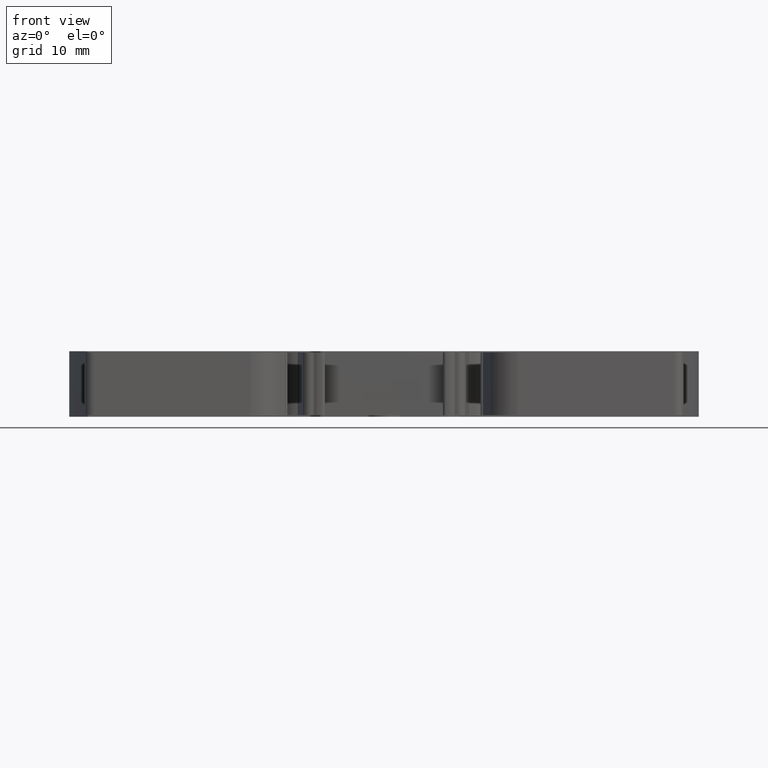
[diagram: clean part render]
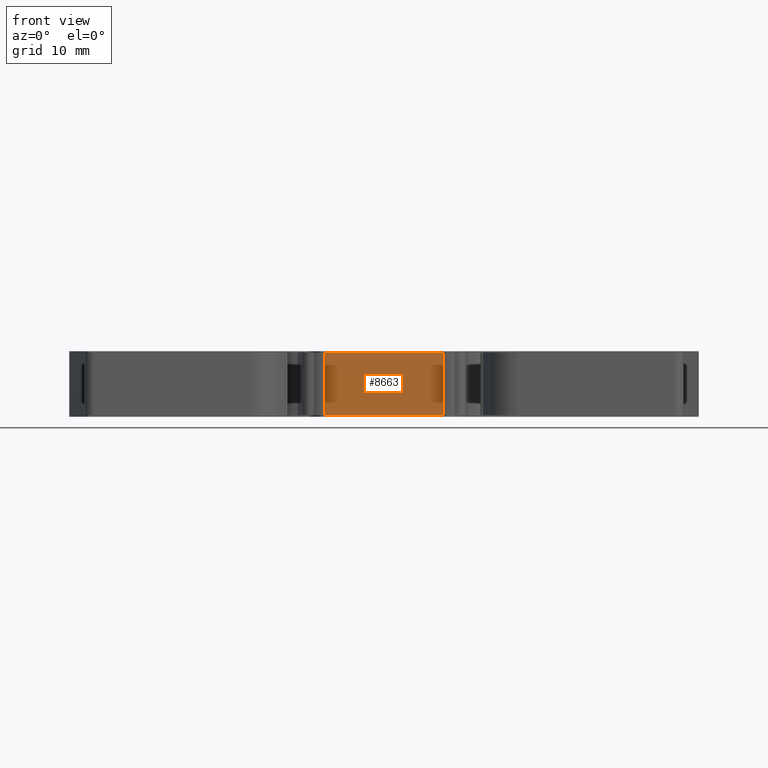
[diagram: same view with one face highlighted and labeled with its STEP entity id]
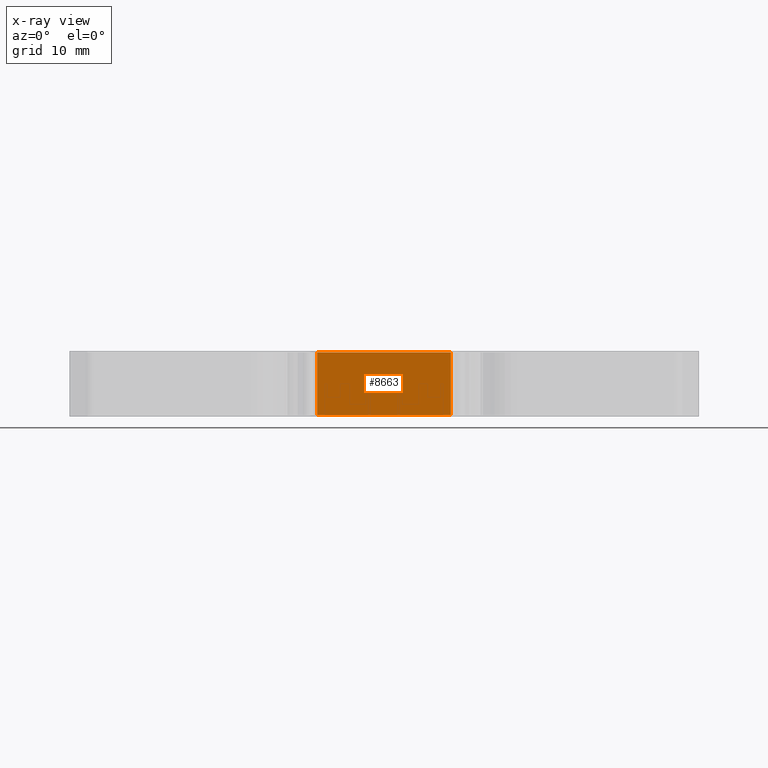
[diagram: x-ray of the same camera — body ghosted, the highlighted face saturated]
A machine part, front view. The second image highlights one B-rep face of the part: STEP entity #8663.
The next image is the same camera in x-ray: the body ghosted, the highlighted face saturated — about 0% of this face is hidden behind the body in this view.
In plain terms, the highlighted planar face has unit normal (-0, 1, 0).
Its self-contained STEP definition (entity closure, byte-faithful):
#392 = CARTESIAN_POINT ( 'NONE',  ( 1329.998164954668900, 404.4014083608968800, 0.1500000000000008300 ) ) ;
#395 = CARTESIAN_POINT ( 'NONE',  ( 1329.980376204197900, 404.4015270294959800, 0.1499999999999999900 ) ) ;
#397 = CARTESIAN_POINT ( 'NONE',  ( 1329.989270404268600, 404.4014479176179900, 0.1500000000000008300 ) ) ;
#417 = CARTESIAN_POINT ( 'NONE',  ( 1330.007059505069900, 404.4014676951830400, 0.1500000000000024900 ) ) ;
#1169 = CARTESIAN_POINT ( 'NONE',  ( 1317.764323151782000, 404.4015270294959200, 10.40000000000000000 ) ) ;
#1188 = LINE ( 'NONE', #1169, #9014 ) ;
#1205 = DIRECTION ( 'NONE',  ( -1.000000000000000000, -5.070064584348280300E-015, 0.0000000000000000000 ) ) ;
#1318 = CARTESIAN_POINT ( 'NONE',  ( 1330.015953938190900, 404.4015270294959800, 0.1500000000000008300 ) ) ;
#1328 = CARTESIAN_POINT ( 'NONE',  ( 1330.007059505069900, 404.4014676951830400, 0.1500000000000024900 ) ) ;
#1341 = CARTESIAN_POINT ( 'NONE',  ( 1330.033742804432000, 404.4015270294959800, 0.1499999999999999900 ) ) ;
#1344 = CARTESIAN_POINT ( 'NONE',  ( 1330.024848371311500, 404.4015270294959800, 0.1500000000000008300 ) ) ;
#1981 = AXIS2_PLACEMENT_3D ( 'NONE', #8333, #8317, #8326 ) ;
#5307 = EDGE_LOOP ( 'NONE', ( #13670, #13647, #13611, #13648, #13663, #13617, #13645 ) ) ;
#6277 = VERTEX_POINT ( 'NONE', #7698 ) ;
#6306 = VERTEX_POINT ( 'NONE', #7699 ) ;
#6319 = VERTEX_POINT ( 'NONE', #7702 ) ;
#6330 = VERTEX_POINT ( 'NONE', #7720 ) ;
#6335 = VERTEX_POINT ( 'NONE', #7724 ) ;
#6345 = VERTEX_POINT ( 'NONE', #7776 ) ;
#6469 = VERTEX_POINT ( 'NONE', #7841 ) ;
#7698 = CARTESIAN_POINT ( 'NONE',  ( 1319.058253966650000, 404.4015270294825100, 10.40000000000000000 ) ) ;
#7699 = CARTESIAN_POINT ( 'NONE',  ( 1330.007059505069900, 404.4014676951830400, 0.1500000000000024900 ) ) ;
#7702 = CARTESIAN_POINT ( 'NONE',  ( 1329.980376204197900, 404.4015270294959800, 0.1499999999999999900 ) ) ;
#7720 = CARTESIAN_POINT ( 'NONE',  ( 1340.955865043486000, 404.4015270294959800, 10.40000000000000000 ) ) ;
#7724 = CARTESIAN_POINT ( 'NONE',  ( 1330.033742804432000, 404.4015270294959800, 0.1499999999999999900 ) ) ;
#7776 = CARTESIAN_POINT ( 'NONE',  ( 1340.955865043486000, 404.4015270294959800, 0.1500000000000008300 ) ) ;
#7841 = CARTESIAN_POINT ( 'NONE',  ( 1319.058253966650000, 404.4015270294825100, 0.1500000000000008300 ) ) ;
#8302 = PLANE ( 'NONE',  #1981 ) ;
#8317 = DIRECTION ( 'NONE',  ( -5.070064584348280300E-015, 1.000000000000000000, 0.0000000000000000000 ) ) ;
#8326 = DIRECTION ( 'NONE',  ( 1.000000000000000000, 5.070064584348280300E-015, 0.0000000000000000000 ) ) ;
#8331 = FACE_OUTER_BOUND ( 'NONE', #5307, .T. ) ;
#8333 = CARTESIAN_POINT ( 'NONE',  ( 1330.007060531841900, 404.4015270294959800, 10.50000000000000000 ) ) ;
#8369 = VECTOR ( 'NONE', #8957, 1000.000000000000000 ) ;
#8383 = VECTOR ( 'NONE', #8940, 1000.000000000000000 ) ;
#8421 = VECTOR ( 'NONE', #15082, 1000.000000000000000 ) ;
#8663 = ADVANCED_FACE ( 'NONE', ( #8331 ), #8302, .F. ) ;
#8940 = DIRECTION ( 'NONE',  ( 0.0000000000000000000, 0.0000000000000000000, -1.000000000000000000 ) ) ;
#8941 = CARTESIAN_POINT ( 'NONE',  ( 1319.058253966650000, 404.4015270294825100, 10.50000000000000000 ) ) ;
#8942 = LINE ( 'NONE', #8947, #8369 ) ;
#8947 = CARTESIAN_POINT ( 'NONE',  ( 1340.955865043486000, 404.4015270294959800, 10.50000000000000000 ) ) ;
#8957 = DIRECTION ( 'NONE',  ( 0.0000000000000000000, 0.0000000000000000000, -1.000000000000000000 ) ) ;
#8975 = LINE ( 'NONE', #8941, #8383 ) ;
#9014 = VECTOR ( 'NONE', #1205, 1000.000000000000000 ) ;
#10713 = CARTESIAN_POINT ( 'NONE',  ( 1284.302739126161900, 404.4015270294957500, 0.1499999999999999900 ) ) ;
#10736 = LINE ( 'NONE', #10713, #12105 ) ;
#10757 = DIRECTION ( 'NONE',  ( 1.000000000000000000, 5.070064584348280300E-015, 0.0000000000000000000 ) ) ;
#11319 = B_SPLINE_CURVE_WITH_KNOTS ( 'NONE', 3,
 ( #417, #392, #397, #395 ),
 .UNSPECIFIED., .F., .F.,
 ( 4, 4 ),
 ( 0.4999999999875224300, 1.000000000000000000 ),
 .UNSPECIFIED. ) ;
#11330 = B_SPLINE_CURVE_WITH_KNOTS ( 'NONE', 3,
 ( #1328, #1318, #1344, #1341 ),
 .UNSPECIFIED., .F., .F.,
 ( 4, 4 ),
 ( 0.5000000000956970100, 1.000000000000000000 ),
 .UNSPECIFIED. ) ;
#12105 = VECTOR ( 'NONE', #10757, 1000.000000000000000 ) ;
#12726 = EDGE_CURVE ( 'NONE', #6335, #6345, #10736, .T. ) ;
#12749 = EDGE_CURVE ( 'NONE', #6277, #6469, #8975, .T. ) ;
#12750 = EDGE_CURVE ( 'NONE', #6330, #6345, #8942, .T. ) ;
#12777 = EDGE_CURVE ( 'NONE', #6319, #6469, #15394, .T. ) ;
#12803 = EDGE_CURVE ( 'NONE', #6306, #6335, #11330, .T. ) ;
#12841 = EDGE_CURVE ( 'NONE', #6306, #6319, #11319, .T. ) ;
#13038 = EDGE_CURVE ( 'NONE', #6330, #6277, #1188, .T. ) ;
#13611 = ORIENTED_EDGE ( 'NONE', *, *, #12749, .T. ) ;
#13617 = ORIENTED_EDGE ( 'NONE', *, *, #12803, .T. ) ;
#13645 = ORIENTED_EDGE ( 'NONE', *, *, #12726, .T. ) ;
#13647 = ORIENTED_EDGE ( 'NONE', *, *, #13038, .T. ) ;
#13648 = ORIENTED_EDGE ( 'NONE', *, *, #12777, .F. ) ;
#13663 = ORIENTED_EDGE ( 'NONE', *, *, #12841, .F. ) ;
#13670 = ORIENTED_EDGE ( 'NONE', *, *, #12750, .F. ) ;
#15018 = CARTESIAN_POINT ( 'NONE',  ( 1330.007060531841900, 404.4015270294959800, 0.1500000000000008300 ) ) ;
#15082 = DIRECTION ( 'NONE',  ( -1.000000000000000000, -5.070064584348280300E-015, 0.0000000000000000000 ) ) ;
#15394 = LINE ( 'NONE', #15018, #8421 ) ;